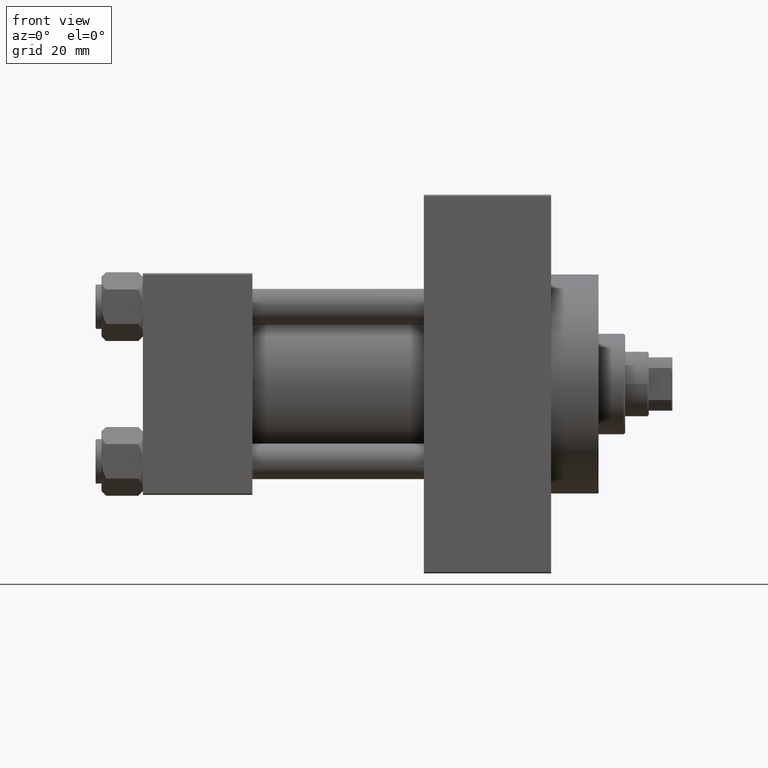
[diagram: clean part render]
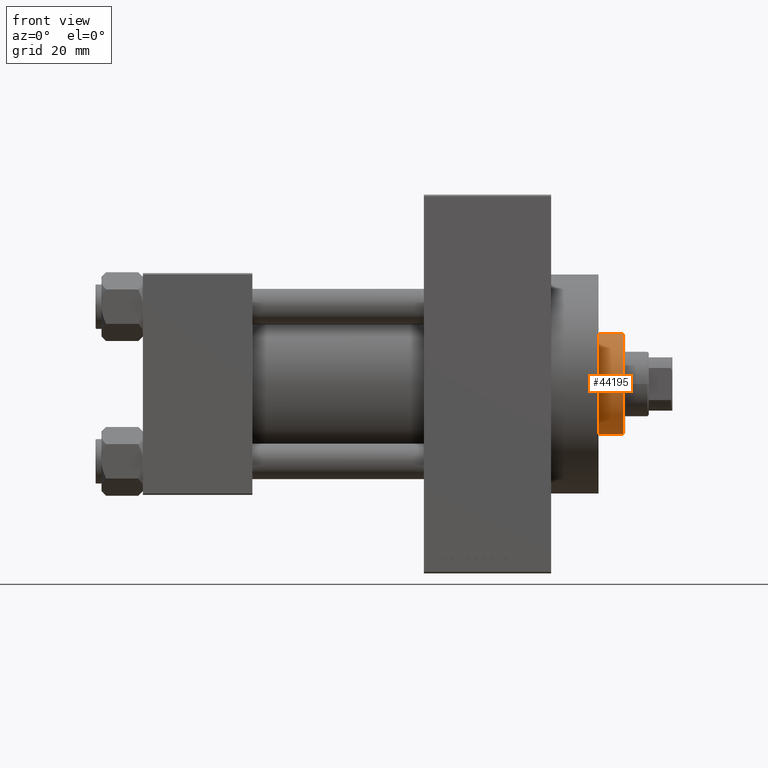
[diagram: same view with one face highlighted and labeled with its STEP entity id]
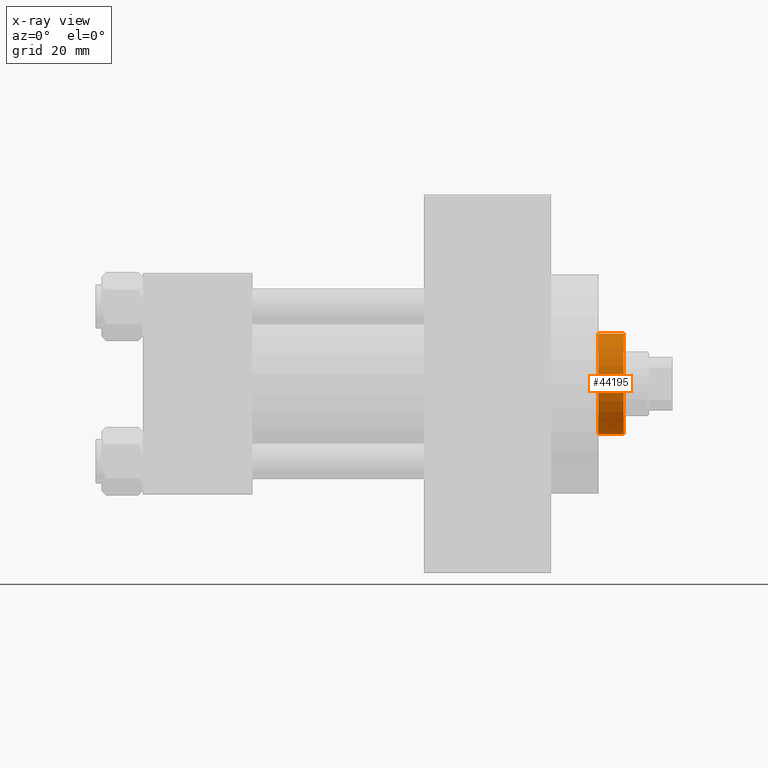
[diagram: x-ray of the same camera — body ghosted, the highlighted face saturated]
A machine part, front view. The second image highlights one B-rep face of the part: STEP entity #44195.
The next image is the same camera in x-ray: the body ghosted, the highlighted face saturated — about 0% of this face is hidden behind the body in this view.
In plain terms, the highlighted cylindrical surface (partial cylindrical patch) has radius 17 mm, axis along (-1, -0, 0).
Its self-contained STEP definition (entity closure, byte-faithful):
#1270 = DIRECTION ( 'NONE',  ( -0.000000000000000000, -0.000000000000000000, -1.000000000000000000 ) ) ;
#1840 = DIRECTION ( 'NONE',  ( 0.000000000000000000, 0.000000000000000000, -1.000000000000000000 ) ) ;
#1967 = VECTOR ( 'NONE', #11625, 1000.000000000000000 ) ;
#4775 = EDGE_CURVE ( 'NONE', #6720, #46294, #26970, .T. ) ;
#4880 = DIRECTION ( 'NONE',  ( -0.000000000000000000, -0.000000000000000000, -1.000000000000000000 ) ) ;
#5236 = DIRECTION ( 'NONE',  ( -1.000000000000000000, 0.000000000000000000, 0.000000000000000000 ) ) ;
#5797 = CARTESIAN_POINT ( 'NONE',  ( 0.000000000000000000, 0.000000000000000000, 51.76000000000000512 ) ) ;
#6526 = AXIS2_PLACEMENT_3D ( 'NONE', #5797, #1840, #20894 ) ;
#6720 = VERTEX_POINT ( 'NONE', #26668 ) ;
#7924 = CARTESIAN_POINT ( 'NONE',  ( 17.00000000000000000, 2.081899558550500280E-15, 52.25999999999999801 ) ) ;
#11625 = DIRECTION ( 'NONE',  ( -0.000000000000000000, -0.000000000000000000, -1.000000000000000000 ) ) ;
#12057 = CARTESIAN_POINT ( 'NONE',  ( -17.00000000000000000, 0.000000000000000000, 52.25999999999999801 ) ) ;
#15605 = VERTEX_POINT ( 'NONE', #37546 ) ;
#16873 = CARTESIAN_POINT ( 'NONE',  ( 0.000000000000000000, 0.000000000000000000, 52.25999999999999801 ) ) ;
#17737 = DIRECTION ( 'NONE',  ( 0.000000000000000000, 0.000000000000000000, 1.000000000000000000 ) ) ;
#18472 = EDGE_LOOP ( 'NONE', ( #37610, #23154, #47769, #37788 ) ) ;
#20894 = DIRECTION ( 'NONE',  ( 1.000000000000000000, 0.000000000000000000, 0.000000000000000000 ) ) ;
#23154 = ORIENTED_EDGE ( 'NONE', *, *, #34690, .T. ) ;
#23557 = FACE_OUTER_BOUND ( 'NONE', #18472, .T. ) ;
#25507 = CIRCLE ( 'NONE', #31052, 17.00000000000000000 ) ;
#25536 = VECTOR ( 'NONE', #4880, 1000.000000000000000 ) ;
#26668 = CARTESIAN_POINT ( 'NONE',  ( 17.00000000000000000, 2.081899558550500280E-15, 51.76000000000000512 ) ) ;
#26970 = LINE ( 'NONE', #7924, #1967 ) ;
#27866 = CIRCLE ( 'NONE', #6526, 17.00000000000000000 ) ;
#31052 = AXIS2_PLACEMENT_3D ( 'NONE', #32835, #17737, #47695 ) ;
#31407 = AXIS2_PLACEMENT_3D ( 'NONE', #16873, #1270, #5236 ) ;
#32250 = CARTESIAN_POINT ( 'NONE',  ( -17.00000000000000000, 0.000000000000000000, 51.76000000000000512 ) ) ;
#32835 = CARTESIAN_POINT ( 'NONE',  ( 0.000000000000000000, 0.000000000000000000, 43.25999999999999801 ) ) ;
#34317 = CARTESIAN_POINT ( 'NONE',  ( 17.00000000000000000, 2.081899558550500280E-15, 43.25999999999999801 ) ) ;
#34690 = EDGE_CURVE ( 'NONE', #6720, #41418, #27866, .T. ) ;
#35081 = EDGE_CURVE ( 'NONE', #41418, #15605, #42750, .T. ) ;
#35219 = EDGE_CURVE ( 'NONE', #15605, #46294, #25507, .T. ) ;
#37546 = CARTESIAN_POINT ( 'NONE',  ( -17.00000000000000000, 0.000000000000000000, 43.25999999999999801 ) ) ;
#37610 = ORIENTED_EDGE ( 'NONE', *, *, #4775, .F. ) ;
#37788 = ORIENTED_EDGE ( 'NONE', *, *, #35219, .T. ) ;
#41418 = VERTEX_POINT ( 'NONE', #32250 ) ;
#42750 = LINE ( 'NONE', #12057, #25536 ) ;
#42865 = CYLINDRICAL_SURFACE ( 'NONE', #31407, 17.00000000000000000 ) ;
#44195 = ADVANCED_FACE ( 'NONE', ( #23557 ), #42865, .T. ) ;
#46294 = VERTEX_POINT ( 'NONE', #34317 ) ;
#47695 = DIRECTION ( 'NONE',  ( 1.000000000000000000, 0.000000000000000000, 0.000000000000000000 ) ) ;
#47769 = ORIENTED_EDGE ( 'NONE', *, *, #35081, .T. ) ;